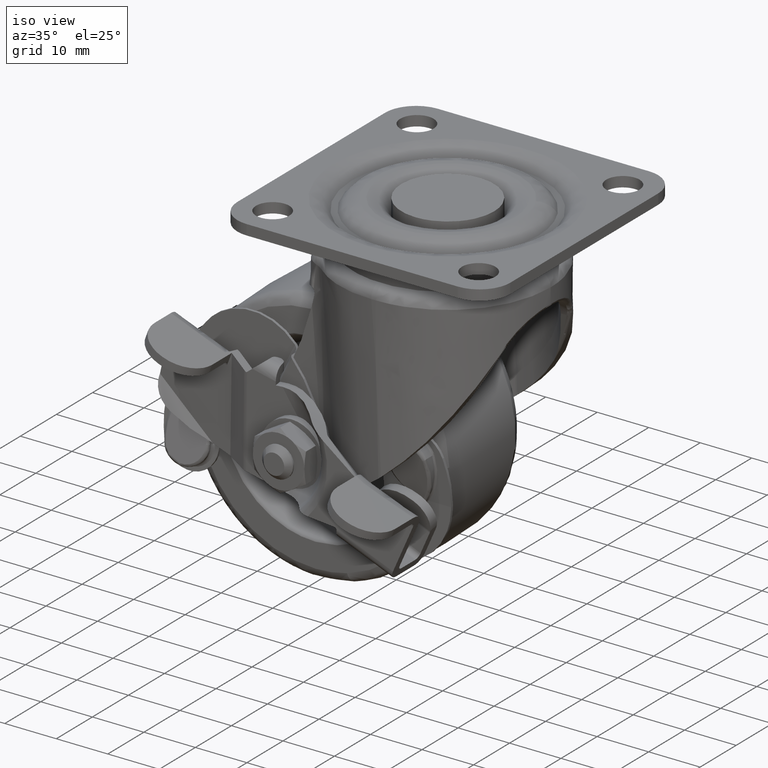
[diagram: clean part render]
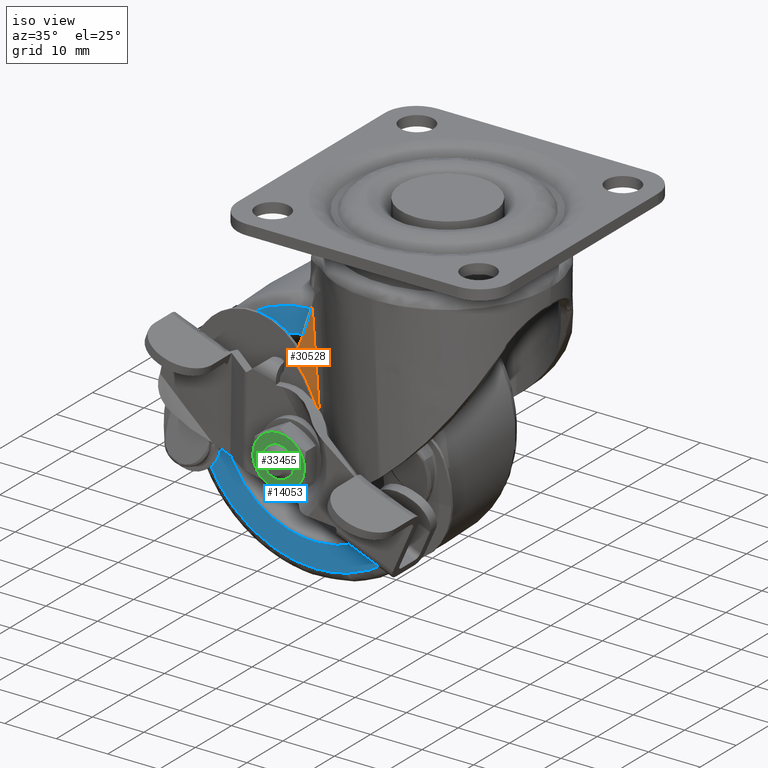
[diagram: same view with three faces highlighted in distinct colors, each labeled with its STEP entity id]
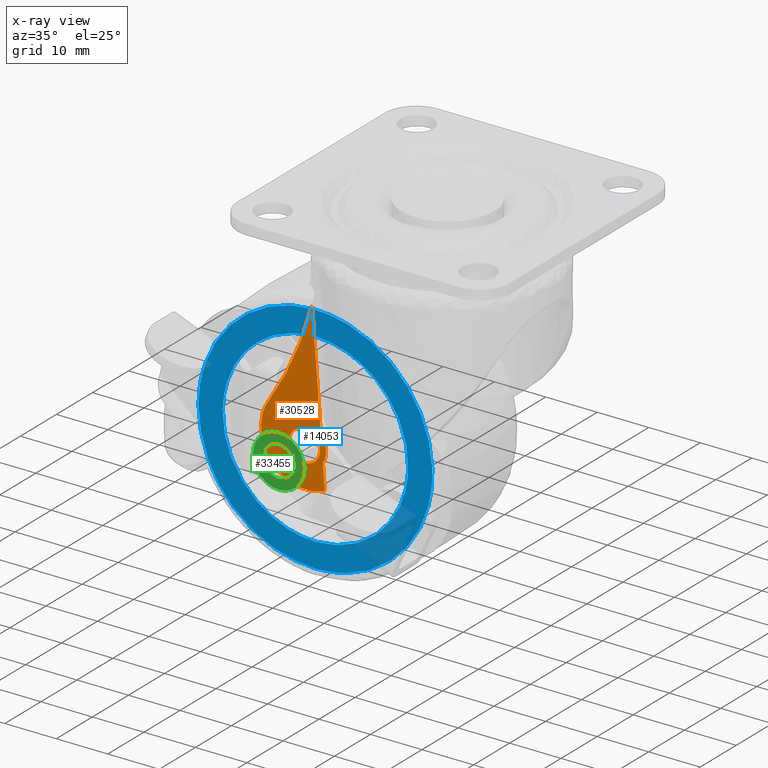
[diagram: x-ray of the same camera — body ghosted, the three highlighted faces saturated]
A machine part, iso view with three faces highlighted in distinct colors.
The next image is the same camera in x-ray (body ghosted, the three faces saturated) — at least one of them is partly hidden behind the body in this view.
Their STEP definitions:

[orange] entity #30528 — the highlighted face is a freeform B-spline surface patch.
#18819=CARTESIAN_POINT('',(-20.065063358441890,-14.0,-45.175825625251427));
#18820=VERTEX_POINT('',#18819);
#18826=CARTESIAN_POINT('',(-18.0,-14.0,-45.999702999999997));
#18827=VERTEX_POINT('',#18826);
#18828=CARTESIAN_POINT('',(-18.0,-14.0,-45.999702999999997));
#18829=CARTESIAN_POINT('',(-18.260985406424869,-14.0,-45.999760008467348));
#18830=CARTESIAN_POINT('',(-18.806665625784738,-14.000000000000011,-45.928103991971177));
#18831=CARTESIAN_POINT('',(-19.512046031592320,-14.000000000000011,-45.627105789375648));
#18832=CARTESIAN_POINT('',(-19.910186918212521,-14.000000000000041,-45.322818152207333));
#18833=CARTESIAN_POINT('',(-20.065063358441890,-14.0,-45.175825625251427));
#18834=B_SPLINE_CURVE_WITH_KNOTS('',3,(#18828,#18829,#18830,#18831,#18832,#18833),.UNSPECIFIED.,.F.,.U.,(4,1,1,4),(0.000000044315680,0.782971179636178,1.637101519672385,2.277707920481838),.UNSPECIFIED.);
#18835=EDGE_CURVE('',#18827,#18820,#18834,.T.);
#18837=CARTESIAN_POINT('',(-15.000000000000989,-14.0,-42.999705433661418));
#18838=VERTEX_POINT('',#18837);
#18839=CARTESIAN_POINT('',(-15.000000000000989,-14.0,-42.999705433661418));
#18840=CARTESIAN_POINT('',(-14.999707258841539,-14.000000000000011,-43.367916132603497));
#18841=CARTESIAN_POINT('',(-15.105268686113609,-14.0,-43.932147995106149));
#18842=CARTESIAN_POINT('',(-15.493405906489610,-14.000000000000041,-44.703196500300308));
#18843=CARTESIAN_POINT('',(-15.947090944183691,-13.999999999999931,-45.229244202061132));
#18844=CARTESIAN_POINT('',(-16.511773400309409,-14.000000000000110,-45.626762943634930));
#18845=CARTESIAN_POINT('',(-17.165611055049801,-13.999999999999920,-45.916683606614413));
#18846=CARTESIAN_POINT('',(-17.680913810506809,-14.000000000000030,-45.999862868301548));
#18847=CARTESIAN_POINT('',(-18.0,-14.0,-45.999702999999997));
#18848=B_SPLINE_CURVE_WITH_KNOTS('',3,(#18839,#18840,#18841,#18842,#18843,#18844,#18845,#18846,#18847),.UNSPECIFIED.,.F.,.U.,(4,1,1,1,1,1,4),(0.000000165653685,1.104492994524724,1.693561327583123,2.577110439045223,3.166198034698224,3.755288808023229,4.712505861323729),.UNSPECIFIED.);
#18849=EDGE_CURVE('',#18838,#18827,#18848,.T.);
#18851=CARTESIAN_POINT('',(-18.0,-14.0,-39.999702999999997));
#18852=VERTEX_POINT('',#18851);
#18853=CARTESIAN_POINT('',(-18.0,-14.0,-39.999702999999997));
#18854=CARTESIAN_POINT('',(-17.631795902367450,-13.999999999999989,-39.999419007742873));
#18855=CARTESIAN_POINT('',(-17.067532224706891,-14.0,-40.104931669771851));
#18856=CARTESIAN_POINT('',(-16.384657342724189,-13.999999999999989,-40.448833019660682));
#18857=CARTESIAN_POINT('',(-15.879121746088650,-14.000000000000041,-40.843281631138453));
#18858=CARTESIAN_POINT('',(-15.471260247816829,-13.999999999999879,-41.340293780729581));
#18859=CARTESIAN_POINT('',(-15.105306095659261,-14.000000000000149,-42.067253259063683));
#18860=CARTESIAN_POINT('',(-14.999642573871780,-13.999999999999890,-42.631489009396113));
#18861=CARTESIAN_POINT('',(-15.000000000000989,-14.0,-42.999705433661418));
#18862=B_SPLINE_CURVE_WITH_KNOTS('',3,(#18853,#18854,#18855,#18856,#18857,#18858,#18859,#18860,#18861),.UNSPECIFIED.,.F.,.U.,(4,1,1,1,1,1,4),(0.000000162309085,1.104493634964632,1.693562309699939,2.282641062937854,3.018944360145506,3.608015758171730,4.712508604695827),.UNSPECIFIED.);
#18863=EDGE_CURVE('',#18852,#18838,#18862,.T.);
#18865=CARTESIAN_POINT('',(-20.290667276063129,-14.0,-41.062476366331182));
#18866=VERTEX_POINT('',#18865);
#18867=CARTESIAN_POINT('',(-20.290667276063129,-14.0,-41.062476366331182));
#18868=CARTESIAN_POINT('',(-20.097905503368029,-13.999999999999989,-40.834336926220928));
#18869=CARTESIAN_POINT('',(-19.746734660525139,-14.000000000000020,-40.526988778261007));
#18870=CARTESIAN_POINT('',(-18.977080775815111,-14.0,-40.117638425019123));
#18871=CARTESIAN_POINT('',(-18.407358273430798,-14.0,-39.999184977064409));
#18872=CARTESIAN_POINT('',(-18.0,-14.0,-39.999702999999997));
#18873=B_SPLINE_CURVE_WITH_KNOTS('',3,(#18867,#18868,#18869,#18870,#18871,#18872),.UNSPECIFIED.,.F.,.U.,(4,1,1,4),(0.000000030252632,0.895980678798579,1.384694504412764,2.606484986007955),.UNSPECIFIED.);
#18874=EDGE_CURVE('',#18866,#18852,#18873,.T.);
#18909=CARTESIAN_POINT('',(-20.999999999999009,-14.0,-42.999700566338603));
#18910=VERTEX_POINT('',#18909);
#18911=CARTESIAN_POINT('',(-20.999999999999009,-14.0,-42.999700566338603));
#18912=CARTESIAN_POINT('',(-21.000545814175450,-13.999999999999989,-42.582788018386658));
#18913=CARTESIAN_POINT('',(-20.851173757673038,-14.0,-41.881327059396789));
#18914=CARTESIAN_POINT('',(-20.474889930057991,-14.000000000000011,-41.280177325258798));
#18915=CARTESIAN_POINT('',(-20.290667276063129,-14.0,-41.062476366331182));
#18916=B_SPLINE_CURVE_WITH_KNOTS('',3,(#18911,#18912,#18913,#18914,#18915),.UNSPECIFIED.,.F.,.U.,(4,1,4),(0.000000042969295,1.250437235727705,2.106024281585576),.UNSPECIFIED.);
#18917=EDGE_CURVE('',#18910,#18866,#18916,.T.);
#18919=CARTESIAN_POINT('',(-20.065063358441890,-14.0,-45.175825625251427));
#18920=CARTESIAN_POINT('',(-20.304384822977418,-14.0,-44.948995225297153));
#18921=CARTESIAN_POINT('',(-20.629392087535901,-14.000000000000011,-44.517975917237742));
#18922=CARTESIAN_POINT('',(-20.932274408835109,-13.999999999999980,-43.760505582113773));
#18923=CARTESIAN_POINT('',(-21.000102756311289,-13.999999999999980,-43.278691683453253));
#18924=CARTESIAN_POINT('',(-20.999999999999009,-14.0,-42.999700566338603));
#18925=B_SPLINE_CURVE_WITH_KNOTS('',3,(#18919,#18920,#18921,#18922,#18923,#18924),.UNSPECIFIED.,.F.,.U.,(4,1,1,4),(0.000000038491807,0.989148881986098,1.597829272250050,2.434801662014795),.UNSPECIFIED.);
#18926=EDGE_CURVE('',#18820,#18910,#18925,.T.);
#21787=CARTESIAN_POINT('',(-14.812401172224860,-14.0,-40.342314486220552));
#21788=VERTEX_POINT('',#21787);
#21789=CARTESIAN_POINT('',(-14.440761517049680,-14.0,-45.133788617187399));
#21790=VERTEX_POINT('',#21789);
#21791=CARTESIAN_POINT('',(-14.812401172224860,-14.0,-40.342314486220552));
#21792=CARTESIAN_POINT('',(-14.487232016746310,-14.000000000000020,-40.731680700322499));
#21793=CARTESIAN_POINT('',(-14.075950155706559,-13.999999999999959,-41.465739604869697));
#21794=CARTESIAN_POINT('',(-13.832281998803831,-14.000000000000011,-42.595428209971871));
#21795=CARTESIAN_POINT('',(-13.848746950853410,-13.999999999999959,-43.455234819143470));
#21796=CARTESIAN_POINT('',(-14.034723846792209,-14.000000000000041,-44.319014908056403));
#21797=CARTESIAN_POINT('',(-14.262219556897969,-13.999999999999989,-44.836194019939803));
#21798=CARTESIAN_POINT('',(-14.440761517049680,-14.0,-45.133788617187399));
#21799=B_SPLINE_CURVE_WITH_KNOTS('',3,(#21791,#21792,#21793,#21794,#21795,#21796,#21797,#21798),.UNSPECIFIED.,.F.,.U.,(4,1,1,1,1,4),(0.000000111782645,1.521655138244294,2.482710668389745,3.443724059880220,4.084428039350171,5.125545881543708),.UNSPECIFIED.);
#21800=EDGE_CURVE('',#21788,#21790,#21799,.T.);
#29269=CARTESIAN_POINT('',(-16.549373770837999,-14.0,-17.947881716309951));
#29270=VERTEX_POINT('',#29269);
#29271=CARTESIAN_POINT('',(-14.812401172224860,-14.0,-40.342314486220552));
#29272=CARTESIAN_POINT('',(-16.549373770837999,-14.0,-17.947881716309951));
#29273=QUASI_UNIFORM_CURVE('',1,(#29271,#29272),.UNSPECIFIED.,.F.,.U.);
#29274=EDGE_CURVE('',#21788,#29270,#29273,.T.);
#29277=CARTESIAN_POINT('',(-14.069150555114280,-14.0,-49.924892812077303));
#29278=VERTEX_POINT('',#29277);
#29279=CARTESIAN_POINT('',(-14.069150555114280,-14.0,-49.924892812077303));
#29280=CARTESIAN_POINT('',(-14.440761517049680,-14.0,-45.133788617187399));
#29281=QUASI_UNIFORM_CURVE('',1,(#29279,#29280),.UNSPECIFIED.,.F.,.U.);
#29282=EDGE_CURVE('',#29278,#21790,#29281,.T.);
#30107=CARTESIAN_POINT('',(-14.579077689634200,-14.0,-50.119038075290099));
#30108=VERTEX_POINT('',#30107);
#30109=CARTESIAN_POINT('',(-14.069150555114280,-14.0,-49.924892812077303));
#30110=CARTESIAN_POINT('',(-14.323635220084700,-14.000000000000011,-50.023223291895810));
#30111=CARTESIAN_POINT('',(-14.579077689634200,-14.0,-50.119038075290099));
#30112=B_SPLINE_CURVE_WITH_KNOTS('',2,(#30109,#30110,#30111),.UNSPECIFIED.,.F.,.U.,(3,3),(6.106227E-016,0.545638789672889),.UNSPECIFIED.);
#30113=EDGE_CURVE('',#29278,#30108,#30112,.T.);
#30478=CARTESIAN_POINT('',(-27.099975711828669,-14.0,-52.311965807248292));
#30479=CARTESIAN_POINT('',(-27.099975711828669,-14.0,-16.313054478204229));
#30480=CARTESIAN_POINT('',(-13.219734244910461,-14.0,-52.311965807248292));
#30481=CARTESIAN_POINT('',(-13.219734244910461,-14.0,-16.313054478204229));
#30482=B_SPLINE_SURFACE_WITH_KNOTS('',1,1,((#30478,#30480),(#30479,#30481)),.UNSPECIFIED.,.F.,.F.,.U.,(2,2),(2,2),(0.0,35.998911329044063),(0.0,13.880241466918211),.UNSPECIFIED.);
#30483=ORIENTED_EDGE('',*,*,#29282,.T.);
#30484=ORIENTED_EDGE('',*,*,#21800,.F.);
#30485=ORIENTED_EDGE('',*,*,#29274,.T.);
#30486=CARTESIAN_POINT('',(-25.008377406252698,-14.0,-37.023370460246653));
#30487=VERTEX_POINT('',#30486);
#30488=CARTESIAN_POINT('',(-16.549373770837999,-14.0,-17.947881716309951));
#30489=CARTESIAN_POINT('',(-17.063046938685890,-13.999999999999989,-19.957889616089240));
#30490=CARTESIAN_POINT('',(-18.451550120568239,-14.000000000000030,-24.449110947828750));
#30491=CARTESIAN_POINT('',(-21.256475439105468,-13.999999999999931,-30.864622713643751));
#30492=CARTESIAN_POINT('',(-23.742976684027820,-14.000000000000069,-35.111158444847099));
#30493=CARTESIAN_POINT('',(-25.008377406252698,-14.0,-37.023370460246653));
#30494=B_SPLINE_CURVE_WITH_KNOTS('',3,(#30488,#30489,#30490,#30491,#30492,#30493),.UNSPECIFIED.,.F.,.U.,(4,1,1,4),(2.148294E-009,6.223830488887860,14.085507320819289,20.964480602779460),.UNSPECIFIED.);
#30495=EDGE_CURVE('',#29270,#30487,#30494,.T.);
#30496=ORIENTED_EDGE('',*,*,#30495,.T.);
#30497=CARTESIAN_POINT('',(-14.579077689634200,-14.0,-50.119038075290099));
#30498=CARTESIAN_POINT('',(-15.118526329044000,-13.999999999999980,-50.321459050085473));
#30499=CARTESIAN_POINT('',(-16.125471427570741,-14.000000000000050,-50.589900167853983));
#30500=CARTESIAN_POINT('',(-17.536483968931059,-13.999999999999980,-50.708490096888589));
#30501=CARTESIAN_POINT('',(-18.833306434583310,-14.000000000000030,-50.632481579309477));
#30502=CARTESIAN_POINT('',(-20.135862759391170,-13.999999999999950,-50.367132296238239));
#30503=CARTESIAN_POINT('',(-21.757542001920338,-13.999999999999989,-49.751446886000728));
#30504=CARTESIAN_POINT('',(-23.362910340487929,-14.000000000000179,-48.701718725055620));
#30505=CARTESIAN_POINT('',(-24.588883670196662,-13.999999999999620,-47.388421340373952));
#30506=CARTESIAN_POINT('',(-25.426334366031821,-14.000000000000229,-46.107982043892292));
#30507=CARTESIAN_POINT('',(-25.989321883803779,-13.999999999999980,-44.870740384099172));
#30508=CARTESIAN_POINT('',(-26.331080332422751,-14.000000000000041,-43.586119168030379));
#30509=CARTESIAN_POINT('',(-26.486288716460290,-14.000000000000030,-42.325847292030467));
#30510=CARTESIAN_POINT('',(-26.464009971764010,-13.999999999999851,-40.823285321563773));
#30511=CARTESIAN_POINT('',(-26.062289620105620,-14.000000000000361,-38.951276795180988));
#30512=CARTESIAN_POINT('',(-25.421872910292311,-13.999999999999750,-37.647920289759362));
#30513=CARTESIAN_POINT('',(-25.008377406252698,-14.0,-37.023370460246653));
#30514=B_SPLINE_CURVE_WITH_KNOTS('',3,(#30497,#30498,#30499,#30500,#30501,#30502,#30503,#30504,#30505,#30506,#30507,#30508,#30509,#30510,#30511,#30512,#30513),.UNSPECIFIED.,.F.,.U.,(4,1,1,1,1,1,1,1,1,1,1,1,1,1,4),(0.000000298710731,1.728525168410720,3.111322143718606,4.234902486184076,5.617741715985975,7.087020518240927,9.420529629821361,11.321879719454520,12.445436894570941,14.001118855411610,15.383941077313160,16.421078579439289,17.803911092257088,19.878204055633621,22.125244062638970),.UNSPECIFIED.);
#30515=EDGE_CURVE('',#30108,#30487,#30514,.T.);
#30516=ORIENTED_EDGE('',*,*,#30515,.F.);
#30517=ORIENTED_EDGE('',*,*,#30113,.F.);
#30518=EDGE_LOOP('',(#30483,#30484,#30485,#30496,#30516,#30517));
#30519=FACE_OUTER_BOUND('',#30518,.T.);
#30520=ORIENTED_EDGE('',*,*,#18863,.T.);
#30521=ORIENTED_EDGE('',*,*,#18849,.T.);
#30522=ORIENTED_EDGE('',*,*,#18835,.T.);
#30523=ORIENTED_EDGE('',*,*,#18926,.T.);
#30524=ORIENTED_EDGE('',*,*,#18917,.T.);
#30525=ORIENTED_EDGE('',*,*,#18874,.T.);
#30526=EDGE_LOOP('',(#30520,#30521,#30522,#30523,#30524,#30525));
#30527=FACE_BOUND('',#30526,.T.);
#30528=ADVANCED_FACE('',(#30519,#30527),#30482,.F.);

[blue] entity #14053 — the highlighted face is a freeform B-spline surface patch.
#12818=CARTESIAN_POINT('',(17.995604980112279,-11.0,-43.452374135858904));
#12819=VERTEX_POINT('',#12818);
#12830=CARTESIAN_POINT('',(0.0,-11.0,-24.998709999999999));
#12831=VERTEX_POINT('',#12830);
#12832=CARTESIAN_POINT('',(17.995604980112279,-11.0,-43.452374135858904));
#12833=CARTESIAN_POINT('',(18.027768742420939,-11.0,-42.180919178324743));
#12834=CARTESIAN_POINT('',(17.872488407624900,-11.0,-40.268755433285023));
#12835=CARTESIAN_POINT('',(17.098533479717581,-11.000000000000080,-37.102926826743477));
#12836=CARTESIAN_POINT('',(15.897111176247810,-10.999999999999860,-34.300523624872874));
#12837=CARTESIAN_POINT('',(14.061492839259190,-11.000000000000050,-31.643623185430300));
#12838=CARTESIAN_POINT('',(11.994222398024920,-10.999999999999710,-29.470097063857509));
#12839=CARTESIAN_POINT('',(9.867993884788694,-11.000000000000121,-27.859296025903461));
#12840=CARTESIAN_POINT('',(7.296757638171634,-10.999999999999959,-26.469249065385220));
#12841=CARTESIAN_POINT('',(4.152029587177571,-11.000000000000030,-25.335421991770300));
#12842=CARTESIAN_POINT('',(1.533728327732628,-10.999999999999989,-24.998307031756411));
#12843=CARTESIAN_POINT('',(0.0,-11.0,-24.998709999999999));
#12844=B_SPLINE_CURVE_WITH_KNOTS('',3,(#12832,#12833,#12834,#12835,#12836,#12837,#12838,#12839,#12840,#12841,#12842,#12843),.UNSPECIFIED.,.F.,.U.,(4,1,1,1,1,1,1,1,1,4),(0.000000094310835,3.815527688100662,5.723310296397255,9.763333348632983,12.905556107756540,15.374403333148550,18.741057795675001,20.873284642510878,24.127743452149570,28.728828489054539),.UNSPECIFIED.);
#12845=EDGE_CURVE('',#12819,#12831,#12844,.T.);
#12847=CARTESIAN_POINT('',(-17.995604980112279,-11.0,-42.547625864141096));
#12848=VERTEX_POINT('',#12847);
#12849=CARTESIAN_POINT('',(0.0,-11.0,-24.998709999999999));
#12850=CARTESIAN_POINT('',(-1.123107343728384,-11.000000000000050,-24.998591332541771));
#12851=CARTESIAN_POINT('',(-3.296802906752132,-10.999999999999909,-25.202803792584490));
#12852=CARTESIAN_POINT('',(-6.307213308088049,-11.000000000000041,-26.051197549619200));
#12853=CARTESIAN_POINT('',(-8.673659636133696,-10.999999999999980,-27.167571603323530));
#12854=CARTESIAN_POINT('',(-10.780251033061910,-11.000000000000080,-28.519516259641541));
#12855=CARTESIAN_POINT('',(-12.530770477300370,-10.999999999999821,-29.995067032691590));
#12856=CARTESIAN_POINT('',(-14.155224091190339,-11.000000000000201,-31.804669810907129));
#12857=CARTESIAN_POINT('',(-15.523408501715590,-10.999999999999860,-33.771546574624132));
#12858=CARTESIAN_POINT('',(-16.870003296407411,-11.000000000000130,-36.429171998345971));
#12859=CARTESIAN_POINT('',(-17.750408798469959,-11.000000000000121,-39.437076984806232));
#12860=CARTESIAN_POINT('',(-17.972854458986209,-10.999999999999581,-41.642200797011498));
#12861=CARTESIAN_POINT('',(-17.995604980112279,-11.0,-42.547625864141096));
#12862=B_SPLINE_CURVE_WITH_KNOTS('',3,(#12849,#12850,#12851,#12852,#12853,#12854,#12855,#12856,#12857,#12858,#12859,#12860,#12861),.UNSPECIFIED.,.F.,.U.,(4,1,1,1,1,1,1,1,1,1,4),(0.000000085900371,3.369300446892694,6.521243921363823,9.347134238222452,11.194836205720760,14.020623086602241,16.194406688623701,18.476854094207081,21.194048502275390,25.106821511819021,27.823980698394919),.UNSPECIFIED.);
#12863=EDGE_CURVE('',#12831,#12848,#12862,.T.);
#12904=CARTESIAN_POINT('',(0.0,-11.0,-61.001289999999997));
#12905=VERTEX_POINT('',#12904);
#12906=CARTESIAN_POINT('',(-17.995604980112279,-11.0,-42.547625864141096));
#12907=CARTESIAN_POINT('',(-18.023909008025701,-11.000000000000011,-43.669486220272013));
#12908=CARTESIAN_POINT('',(-17.859516003224432,-10.999999999999970,-46.068427885350822));
#12909=CARTESIAN_POINT('',(-16.993429612485858,-11.000000000000080,-49.224470799189838));
#12910=CARTESIAN_POINT('',(-15.797167821340929,-10.999999999999821,-51.728727176551047));
#12911=CARTESIAN_POINT('',(-14.482807858368060,-11.000000000000220,-53.778366263483647));
#12912=CARTESIAN_POINT('',(-12.764385807297799,-10.999999999999581,-55.813986047623096));
#12913=CARTESIAN_POINT('',(-10.210558675340749,-11.000000000000210,-57.971052875462810));
#12914=CARTESIAN_POINT('',(-7.175445806954153,-10.999999999999931,-59.636435919861043));
#12915=CARTESIAN_POINT('',(-3.665827054146817,-10.999999999999780,-60.743005074350293));
#12916=CARTESIAN_POINT('',(-1.309266614011002,-11.000000000000110,-61.001521297163720));
#12917=CARTESIAN_POINT('',(0.0,-11.0,-61.001289999999997));
#12918=B_SPLINE_CURVE_WITH_KNOTS('',3,(#12906,#12907,#12908,#12909,#12910,#12911,#12912,#12913,#12914,#12915,#12916,#12917),.UNSPECIFIED.,.F.,.U.,(4,1,1,1,1,1,1,1,1,4),(0.000000094313425,3.366651046560708,7.182207780922042,9.763333348637332,11.671108994567559,14.476579931471770,17.731044456998941,21.658843579795288,24.801062808781619,28.728828489054550),.UNSPECIFIED.);
#12919=EDGE_CURVE('',#12848,#12905,#12918,.T.);
#12921=CARTESIAN_POINT('',(0.0,-11.0,-61.001289999999997));
#12922=CARTESIAN_POINT('',(1.123109907367633,-11.000000000000020,-61.001428914183620));
#12923=CARTESIAN_POINT('',(2.898273022723691,-10.999999999999959,-60.834572139412948));
#12924=CARTESIAN_POINT('',(5.646220853812303,-11.0,-60.157762512761408));
#12925=CARTESIAN_POINT('',(7.771047632639801,-11.000000000000011,-59.300688974211148));
#12926=CARTESIAN_POINT('',(10.006905759606850,-10.999999999999851,-58.022736660505423));
#12927=CARTESIAN_POINT('',(11.689866812405951,-11.000000000000140,-56.753807666204636));
#12928=CARTESIAN_POINT('',(13.429726674566981,-10.999999999999950,-55.057144433919532));
#12929=CARTESIAN_POINT('',(14.881297144477729,-11.000000000000030,-53.240629541102678));
#12930=CARTESIAN_POINT('',(16.385062413144770,-10.999999999999950,-50.670197584522143));
#12931=CARTESIAN_POINT('',(17.594843057620331,-11.000000000000121,-47.428657645401167));
#12932=CARTESIAN_POINT('',(17.961283625218389,-10.999999999999860,-44.828675665209879));
#12933=CARTESIAN_POINT('',(17.995604980112279,-11.0,-43.452374135858904));
#12934=B_SPLINE_CURVE_WITH_KNOTS('',3,(#12921,#12922,#12923,#12924,#12925,#12926,#12927,#12928,#12929,#12930,#12931,#12932,#12933),.UNSPECIFIED.,.F.,.U.,(4,1,1,1,1,1,1,1,1,1,4),(0.000000085905146,3.369300446898855,5.325670700730115,8.477632224749211,10.216625374620531,13.042532274686440,14.781450403747510,17.498647376395692,19.998479323848670,23.693861852701769,27.823980698394909),.UNSPECIFIED.);
#12935=EDGE_CURVE('',#12905,#12819,#12934,.T.);
#12958=CARTESIAN_POINT('',(6.149171379200593,-11.0,-64.878373292055841));
#12959=VERTEX_POINT('',#12958);
#12960=CARTESIAN_POINT('',(22.709950391144609,-11.0,-42.143449218221292));
#12961=VERTEX_POINT('',#12960);
#12962=CARTESIAN_POINT('',(6.149171379200593,-11.0,-64.878373292055841));
#12963=CARTESIAN_POINT('',(7.289683102342351,-11.0,-64.557871452451451));
#12964=CARTESIAN_POINT('',(8.442221600842631,-11.0,-64.134293246855762));
#12965=CARTESIAN_POINT('',(9.589289043356713,-11.0,-63.604109507263153));
#12966=CARTESIAN_POINT('',(9.696303584109460,-11.0,-63.553298841266837));
#12967=CARTESIAN_POINT('',(9.839329516952814,-11.0,-63.486256330819842));
#12968=CARTESIAN_POINT('',(9.945782931077432,-10.999999999999980,-63.434273208507740));
#12969=CARTESIAN_POINT('',(11.753833974594899,-11.000000000000041,-62.546988418559430));
#12970=CARTESIAN_POINT('',(13.447493689381480,-11.000000000000011,-61.427156016311379));
#12971=CARTESIAN_POINT('',(14.995131688578210,-11.0,-60.077390110936591));
#12972=CARTESIAN_POINT('',(15.112952423504630,-11.0,-59.972185302769908));
#12973=CARTESIAN_POINT('',(15.201614162779480,-11.0,-59.893617586439042));
#12974=CARTESIAN_POINT('',(16.168058730948420,-11.0,-59.019424577164592));
#12975=CARTESIAN_POINT('',(18.008442535852279,-10.999999999999989,-57.051926605271888));
#12976=CARTESIAN_POINT('',(20.022057841248959,-11.000000000000011,-53.961324928311797));
#12977=CARTESIAN_POINT('',(21.300956096277819,-11.000000000000030,-51.064625118543937));
#12978=CARTESIAN_POINT('',(22.145255314898090,-11.000000000000330,-48.346320900087122));
#12979=CARTESIAN_POINT('',(22.673398077144739,-10.999999999998741,-45.464298307913587));
#12980=CARTESIAN_POINT('',(22.751680941258989,-11.000000000001650,-43.248360317213127));
#12981=CARTESIAN_POINT('',(22.709950391144609,-11.0,-42.143449218221292));
#12982=B_SPLINE_CURVE_WITH_KNOTS('',3,(#12962,#12963,#12964,#12965,#12966,#12967,#12968,#12969,#12970,#12971,#12972,#12973,#12974,#12975,#12976,#12977,#12978,#12979,#12980,#12981),.UNSPECIFIED.,.F.,.U.,(4,1,1,1,1,2,1,1,1,1,1,1,1,1,1,1,4),(0.000145101630828,3.554206202649485,3.672659379207712,3.791128757437850,3.909598135667974,4.146536892292215,9.951537904691744,10.188476794273720,10.306946232969580,10.425415671665460,10.543868974638940,14.216420876574920,18.481251287980591,21.561452687718749,23.693902219564020,27.011042441291139,30.328142621028039),.UNSPECIFIED.);
#12983=EDGE_CURVE('',#12959,#12961,#12982,.T.);
#13064=CARTESIAN_POINT('',(0.0,-11.0,-65.726097897426300));
#13065=VERTEX_POINT('',#13064);
#13066=CARTESIAN_POINT('',(0.0,-11.0,-65.726097897426300));
#13067=CARTESIAN_POINT('',(2.075661967188513,-11.000000000000011,-65.726655974740979));
#13068=CARTESIAN_POINT('',(4.151049598198997,-11.0,-65.440283456279332));
#13069=CARTESIAN_POINT('',(6.149171379200593,-11.0,-64.878373292055841));
#13070=B_SPLINE_CURVE_WITH_KNOTS('',3,(#13066,#13067,#13068,#13069),.UNSPECIFIED.,.F.,.U.,(4,4),(2.098604E-009,6.226808166987434),.UNSPECIFIED.);
#13071=EDGE_CURVE('',#13065,#12959,#13070,.T.);
#13073=CARTESIAN_POINT('',(-22.726097897426229,-11.0,-43.000001790587973));
#13074=VERTEX_POINT('',#13073);
#13075=CARTESIAN_POINT('',(-22.726097897426229,-11.0,-43.000001790587973));
#13076=CARTESIAN_POINT('',(-22.726550604713250,-11.000000000000060,-44.812848189894190));
#13077=CARTESIAN_POINT('',(-22.401706583728231,-10.999999999999931,-47.508545174228360));
#13078=CARTESIAN_POINT('',(-21.227555804118779,-11.000000000000099,-51.336820734391857));
#13079=CARTESIAN_POINT('',(-19.931016429956070,-10.999999999999741,-54.078151730694458));
#13080=CARTESIAN_POINT('',(-18.265248840593131,-11.000000000000250,-56.604318308211248));
#13081=CARTESIAN_POINT('',(-16.144844512921530,-10.999999999999771,-59.140567613735278));
#13082=CARTESIAN_POINT('',(-13.490692722221629,-11.000000000000041,-61.429893938040188));
#13083=CARTESIAN_POINT('',(-10.054094890124601,-11.000000000000060,-63.489642939582119));
#13084=CARTESIAN_POINT('',(-6.586762890827999,-11.000000000000229,-64.876373262762641));
#13085=CARTESIAN_POINT('',(-3.067796150825419,-10.999999999999520,-65.598665822159177));
#13086=CARTESIAN_POINT('',(-0.883139306000795,-11.000000000000490,-65.726105521712896));
#13087=CARTESIAN_POINT('',(0.0,-11.0,-65.726097897426300));
#13088=B_SPLINE_CURVE_WITH_KNOTS('',3,(#13075,#13076,#13077,#13078,#13079,#13080,#13081,#13082,#13083,#13084,#13085,#13086,#13087),.UNSPECIFIED.,.F.,.U.,(4,1,1,1,1,1,1,1,1,1,4),(0.000000087838707,5.438376085683089,8.087852064350290,11.992351597964751,14.502401227533980,17.151843879986028,21.892959456338890,24.960787419659582,29.144175181048119,33.048697441056703,35.698126090366749),.UNSPECIFIED.);
#13089=EDGE_CURVE('',#13074,#13065,#13088,.T.);
#13091=CARTESIAN_POINT('',(0.0,-11.0,-20.273902102573700));
#13092=VERTEX_POINT('',#13091);
#13093=CARTESIAN_POINT('',(0.0,-11.0,-20.273902102573700));
#13094=CARTESIAN_POINT('',(-1.719850818225550,-11.000000000000041,-20.273581700162520));
#13095=CARTESIAN_POINT('',(-4.694548749949356,-10.999999999999909,-20.613232249043740));
#13096=CARTESIAN_POINT('',(-8.514659743149483,-11.000000000000130,-21.836483856245170));
#13097=CARTESIAN_POINT('',(-11.728772753855610,-10.999999999999730,-23.429649362065359));
#13098=CARTESIAN_POINT('',(-14.513211603941910,-11.000000000000441,-25.390664149093070));
#13099=CARTESIAN_POINT('',(-16.921652405322330,-10.999999999999540,-27.726416029132778));
#13100=CARTESIAN_POINT('',(-18.647760712744230,-11.000000000000190,-29.924324392944119));
#13101=CARTESIAN_POINT('',(-20.063736675484069,-10.999999999999950,-32.222321272884962));
#13102=CARTESIAN_POINT('',(-21.191525176051918,-11.000000000000080,-34.625852040826288));
#13103=CARTESIAN_POINT('',(-22.367229493635961,-10.999999999999860,-38.259089068360382));
#13104=CARTESIAN_POINT('',(-22.726678499894600,-11.000000000000229,-41.094181933924773));
#13105=CARTESIAN_POINT('',(-22.726097897426229,-11.0,-43.000001790587973));
#13106=B_SPLINE_CURVE_WITH_KNOTS('',3,(#13093,#13094,#13095,#13096,#13097,#13098,#13099,#13100,#13101,#13102,#13103,#13104,#13105),.UNSPECIFIED.,.F.,.U.,(4,1,1,1,1,1,1,1,1,1,4),(0.000000087623739,5.159489918321494,8.924532184451209,11.992352276069919,15.896868659533220,19.104026538067998,22.032438081689911,24.263554416700568,27.191935481476850,29.980871896466009,35.698128108779741),.UNSPECIFIED.);
#13107=EDGE_CURVE('',#13092,#13074,#13106,.T.);
#13109=CARTESIAN_POINT('',(22.709950391144609,-11.0,-42.143449218221292));
#13110=CARTESIAN_POINT('',(22.646964218549090,-11.0,-40.466062861699541));
#13111=CARTESIAN_POINT('',(22.234598116919589,-10.999999999999959,-37.712436741018053));
#13112=CARTESIAN_POINT('',(21.080992804171270,-11.000000000000060,-34.357498510555182));
#13113=CARTESIAN_POINT('',(19.686766519924149,-10.999999999999870,-31.499667212615819));
#13114=CARTESIAN_POINT('',(18.010546204379349,-11.000000000000250,-29.005037744585881));
#13115=CARTESIAN_POINT('',(15.960892444312011,-10.999999999999760,-26.753144515018771));
#13116=CARTESIAN_POINT('',(13.703954709084829,-11.000000000000190,-24.778978639267379));
#13117=CARTESIAN_POINT('',(11.039914981192760,-10.999999999999901,-23.030101331077152));
#13118=CARTESIAN_POINT('',(8.346676922509463,-11.000000000000020,-21.810670601474879));
#13119=CARTESIAN_POINT('',(5.799326316363398,-10.999999999999771,-20.982288064620111));
#13120=CARTESIAN_POINT('',(3.175612157954759,-11.000000000000160,-20.424151995927708));
#13121=CARTESIAN_POINT('',(1.088782435409947,-11.000000000000080,-20.273854316817790));
#13122=CARTESIAN_POINT('',(0.0,-11.0,-20.273902102573700));
#13123=B_SPLINE_CURVE_WITH_KNOTS('',3,(#13109,#13110,#13111,#13112,#13113,#13114,#13115,#13116,#13117,#13118,#13119,#13120,#13121,#13122),.UNSPECIFIED.,.F.,.U.,(4,1,1,1,1,1,1,1,1,1,1,4),(0.000000078311380,5.035642775244892,8.302044215211303,10.615734051711440,14.562639678916540,17.284640120829039,19.734367400958678,23.545137082444729,26.811523975939110,28.580827024711780,31.575025234296611,34.841369460608583),.UNSPECIFIED.);
#13124=EDGE_CURVE('',#12961,#13092,#13123,.T.);
#14035=CARTESIAN_POINT('',(-24.996408452556810,-11.0,-67.996433973551461));
#14036=CARTESIAN_POINT('',(-24.996408452556810,-11.0,-18.003567245571439));
#14037=CARTESIAN_POINT('',(24.995896298214380,-11.0,-67.996433973551461));
#14038=CARTESIAN_POINT('',(24.995896298214380,-11.0,-18.003567245571439));
#14039=B_SPLINE_SURFACE_WITH_KNOTS('',1,1,((#14035,#14037),(#14036,#14038)),.UNSPECIFIED.,.F.,.F.,.U.,(2,2),(2,2),(0.0,49.992866727980029),(0.0,49.992304750771197),.UNSPECIFIED.);
#14040=ORIENTED_EDGE('',*,*,#13071,.T.);
#14041=ORIENTED_EDGE('',*,*,#12983,.T.);
#14042=ORIENTED_EDGE('',*,*,#13124,.T.);
#14043=ORIENTED_EDGE('',*,*,#13107,.T.);
#14044=ORIENTED_EDGE('',*,*,#13089,.T.);
#14045=EDGE_LOOP('',(#14040,#14041,#14042,#14043,#14044));
#14046=FACE_OUTER_BOUND('',#14045,.T.);
#14047=ORIENTED_EDGE('',*,*,#12863,.F.);
#14048=ORIENTED_EDGE('',*,*,#12845,.F.);
#14049=ORIENTED_EDGE('',*,*,#12935,.F.);
#14050=ORIENTED_EDGE('',*,*,#12919,.F.);
#14051=EDGE_LOOP('',(#14047,#14048,#14049,#14050));
#14052=FACE_BOUND('',#14051,.T.);
#14053=ADVANCED_FACE('',(#14046,#14052),#14039,.F.);

[green] entity #33455 — the highlighted face is a freeform B-spline surface patch.
#32226=CARTESIAN_POINT('',(-16.062774134717181,-21.199999000195469,-40.709036645627108));
#32227=VERTEX_POINT('',#32226);
#32228=CARTESIAN_POINT('',(-15.000000000000989,-21.199998999999949,-42.999705433661418));
#32229=VERTEX_POINT('',#32228);
#32230=CARTESIAN_POINT('',(-16.062774134717181,-21.199999000195469,-40.709036645627108));
#32231=CARTESIAN_POINT('',(-15.834648783585530,-21.199999000179002,-40.901802372875281));
#32232=CARTESIAN_POINT('',(-15.491070759605060,-21.199999000145549,-41.294265053479769));
#32233=CARTESIAN_POINT('',(-15.101858564040480,-21.199999000078691,-42.076780875481887));
#32234=CARTESIAN_POINT('',(-14.999713991720130,-21.199999000030122,-42.646705407908172));
#32235=CARTESIAN_POINT('',(-15.000000000000989,-21.199998999999949,-42.999705433661418));
#32236=B_SPLINE_CURVE_WITH_KNOTS('',3,(#32230,#32231,#32232,#32233,#32234,#32235),.UNSPECIFIED.,.F.,.U.,(4,1,1,4),(0.000000030330753,0.895981333352167,1.547600722441274,2.606486890152451),.UNSPECIFIED.);
#32237=EDGE_CURVE('',#32227,#32229,#32236,.T.);
#32281=CARTESIAN_POINT('',(-20.065063358441890,-21.199998999999949,-45.175825625251427));
#32282=VERTEX_POINT('',#32281);
#32288=CARTESIAN_POINT('',(-18.0,-21.199998999999949,-45.999702999999997));
#32289=VERTEX_POINT('',#32288);
#32290=CARTESIAN_POINT('',(-18.0,-21.199998999999949,-45.999702999999997));
#32291=CARTESIAN_POINT('',(-18.260985406424869,-21.199998999999931,-45.999760008467348));
#32292=CARTESIAN_POINT('',(-18.806665625784738,-21.199998999999949,-45.928103991971177));
#32293=CARTESIAN_POINT('',(-19.512046031592320,-21.199998999999970,-45.627105789375648));
#32294=CARTESIAN_POINT('',(-19.910186918212521,-21.199998999999998,-45.322818152207333));
#32295=CARTESIAN_POINT('',(-20.065063358441890,-21.199998999999949,-45.175825625251427));
#32296=B_SPLINE_CURVE_WITH_KNOTS('',3,(#32290,#32291,#32292,#32293,#32294,#32295),.UNSPECIFIED.,.F.,.U.,(4,1,1,4),(0.000000044315680,0.782971179636178,1.637101519672385,2.277707920481838),.UNSPECIFIED.);
#32297=EDGE_CURVE('',#32289,#32282,#32296,.T.);
#32299=CARTESIAN_POINT('',(-15.000000000000989,-21.199998999999949,-42.999705433661418));
#32300=CARTESIAN_POINT('',(-14.999707258841539,-21.199998999999959,-43.367916132603497));
#32301=CARTESIAN_POINT('',(-15.105268686113609,-21.199998999999920,-43.932147995106149));
#32302=CARTESIAN_POINT('',(-15.493405906489610,-21.199999000000009,-44.703196500300308));
#32303=CARTESIAN_POINT('',(-15.947090944183691,-21.199998999999831,-45.229244202061132));
#32304=CARTESIAN_POINT('',(-16.511773400309409,-21.199999000000101,-45.626762943634930));
#32305=CARTESIAN_POINT('',(-17.165611055049801,-21.199998999999838,-45.916683606614413));
#32306=CARTESIAN_POINT('',(-17.680913810506809,-21.199998999999970,-45.999862868301548));
#32307=CARTESIAN_POINT('',(-18.0,-21.199998999999949,-45.999702999999997));
#32308=B_SPLINE_CURVE_WITH_KNOTS('',3,(#32299,#32300,#32301,#32302,#32303,#32304,#32305,#32306,#32307),.UNSPECIFIED.,.F.,.U.,(4,1,1,1,1,1,4),(0.000000165653685,1.104492994524724,1.693561327583123,2.577110439045223,3.166198034698224,3.755288808023229,4.712505861323729),.UNSPECIFIED.);
#32309=EDGE_CURVE('',#32229,#32289,#32308,.T.);
#32332=CARTESIAN_POINT('',(-18.0,-21.199998999999949,-39.999702999999997));
#32333=VERTEX_POINT('',#32332);
#32334=CARTESIAN_POINT('',(-18.0,-21.199998999999949,-39.999702999999997));
#32335=CARTESIAN_POINT('',(-17.627022030795111,-21.199999000037590,-39.999352224704893));
#32336=CARTESIAN_POINT('',(-16.925309243943961,-21.199999000108420,-40.132435278391242));
#32337=CARTESIAN_POINT('',(-16.313931718113121,-21.199999000170120,-40.496389048207817));
#32338=CARTESIAN_POINT('',(-16.062774134717181,-21.199999000195469,-40.709036645627108));
#32339=B_SPLINE_CURVE_WITH_KNOTS('',3,(#32334,#32335,#32336,#32337,#32338),.UNSPECIFIED.,.F.,.U.,(4,1,4),(0.000000042928529,1.118813465410097,2.106026302678264),.UNSPECIFIED.);
#32340=EDGE_CURVE('',#32333,#32227,#32339,.T.);
#32342=CARTESIAN_POINT('',(-20.999999999999009,-21.199998999999949,-42.999700566338603));
#32343=VERTEX_POINT('',#32342);
#32344=CARTESIAN_POINT('',(-20.999999999999009,-21.199998999999949,-42.999700566338603));
#32345=CARTESIAN_POINT('',(-21.000331854847602,-21.199998999999931,-42.631488106884767));
#32346=CARTESIAN_POINT('',(-20.894723202203480,-21.199998999999980,-42.067242699203327));
#32347=CARTESIAN_POINT('',(-20.550885057913622,-21.199998999999909,-41.384353219953752));
#32348=CARTESIAN_POINT('',(-20.186752459304842,-21.199998999999909,-40.917742092873723));
#32349=CARTESIAN_POINT('',(-19.738554031599300,-21.199999000000119,-40.531158913826090));
#32350=CARTESIAN_POINT('',(-19.030483572725998,-21.199998999999870,-40.129833071515293));
#32351=CARTESIAN_POINT('',(-18.417350168011769,-21.199998999999881,-39.999163196588917));
#32352=CARTESIAN_POINT('',(-18.0,-21.199998999999949,-39.999702999999997));
#32353=B_SPLINE_CURVE_WITH_KNOTS('',3,(#32344,#32345,#32346,#32347,#32348,#32349,#32350,#32351,#32352),.UNSPECIFIED.,.F.,.U.,(4,1,1,1,1,1,4),(0.000000165650110,1.104492994522516,1.693561327581712,2.282639740577967,2.871662919474729,3.460745214686459,4.712505861323743),.UNSPECIFIED.);
#32354=EDGE_CURVE('',#32343,#32333,#32353,.T.);
#32356=CARTESIAN_POINT('',(-20.065063358441890,-21.199998999999949,-45.175825625251427));
#32357=CARTESIAN_POINT('',(-20.304384822977418,-21.199998999999931,-44.948995225297153));
#32358=CARTESIAN_POINT('',(-20.629392087535908,-21.199998999999980,-44.517975917237742));
#32359=CARTESIAN_POINT('',(-20.932274408835109,-21.199998999999909,-43.760505582113773));
#32360=CARTESIAN_POINT('',(-21.000102756311279,-21.199998999999931,-43.278691683453253));
#32361=CARTESIAN_POINT('',(-20.999999999999009,-21.199998999999949,-42.999700566338603));
#32362=B_SPLINE_CURVE_WITH_KNOTS('',3,(#32356,#32357,#32358,#32359,#32360,#32361),.UNSPECIFIED.,.F.,.U.,(4,1,1,4),(0.000000038491807,0.989148881986098,1.597829272250050,2.434801662014795),.UNSPECIFIED.);
#32363=EDGE_CURVE('',#32282,#32343,#32362,.T.);
#32557=CARTESIAN_POINT('',(-23.0,-21.199998999999949,-43.070415445851047));
#32558=VERTEX_POINT('',#32557);
#32574=CARTESIAN_POINT('',(-23.0,-21.199998999999949,-42.928990554149003));
#32575=VERTEX_POINT('',#32574);
#32576=CARTESIAN_POINT('',(-23.0,-21.199998999999949,-42.928990554149003));
#32577=CARTESIAN_POINT('',(-23.0,-21.199998999999949,-43.070415445851047));
#32578=QUASI_UNIFORM_CURVE('',1,(#32576,#32577),.UNSPECIFIED.,.F.,.U.);
#32579=EDGE_CURVE('',#32575,#32558,#32578,.T.);
#32661=CARTESIAN_POINT('',(-20.463887490493800,-21.199998999999949,-47.351054362988997));
#32662=VERTEX_POINT('',#32661);
#32676=CARTESIAN_POINT('',(-20.536758531682249,-21.199998999999949,-47.308978623806802));
#32677=VERTEX_POINT('',#32676);
#32678=CARTESIAN_POINT('',(-20.536758531682249,-21.199998999999949,-47.308978623806802));
#32679=CARTESIAN_POINT('',(-20.463887490493800,-21.199998999999949,-47.351054362988997));
#32680=QUASI_UNIFORM_CURVE('',1,(#32678,#32679),.UNSPECIFIED.,.F.,.U.);
#32681=EDGE_CURVE('',#32677,#32662,#32680,.T.);
#32761=CARTESIAN_POINT('',(-15.463241468317500,-21.199998999999949,-47.308978623806702));
#32762=VERTEX_POINT('',#32761);
#32776=CARTESIAN_POINT('',(-15.536112509506200,-21.199998999999949,-47.351054362989103));
#32777=VERTEX_POINT('',#32776);
#32778=CARTESIAN_POINT('',(-15.536112509506200,-21.199998999999949,-47.351054362989103));
#32779=CARTESIAN_POINT('',(-15.463241468317500,-21.199998999999949,-47.308978623806702));
#32780=QUASI_UNIFORM_CURVE('',1,(#32778,#32779),.UNSPECIFIED.,.F.,.U.);
#32781=EDGE_CURVE('',#32777,#32762,#32780,.T.);
#32861=CARTESIAN_POINT('',(-13.0,-21.199998999999949,-42.928990554149003));
#32862=VERTEX_POINT('',#32861);
#32878=CARTESIAN_POINT('',(-13.0,-21.199998999999949,-43.070415445851047));
#32879=VERTEX_POINT('',#32878);
#32880=CARTESIAN_POINT('',(-13.0,-21.199998999999949,-43.070415445851047));
#32881=CARTESIAN_POINT('',(-13.0,-21.199998999999949,-42.928990554149003));
#32882=QUASI_UNIFORM_CURVE('',1,(#32880,#32881),.UNSPECIFIED.,.F.,.U.);
#32883=EDGE_CURVE('',#32879,#32862,#32882,.T.);
#33011=CARTESIAN_POINT('',(-20.567103642676550,-21.199998999999949,-38.708435222553049));
#33012=VERTEX_POINT('',#33011);
#33026=CARTESIAN_POINT('',(-20.431810215994599,-21.199998999999949,-38.630343856672212));
#33027=VERTEX_POINT('',#33026);
#33028=CARTESIAN_POINT('',(-20.431810215994599,-21.199998999999949,-38.630343856672212));
#33029=CARTESIAN_POINT('',(-20.567103642676550,-21.199998999999949,-38.708435222553049));
#33030=QUASI_UNIFORM_CURVE('',1,(#33028,#33029),.UNSPECIFIED.,.F.,.U.);
#33031=EDGE_CURVE('',#33027,#33012,#33030,.T.);
#33057=CARTESIAN_POINT('',(-15.568189784005350,-21.199998999999949,-38.630343856672162));
#33058=VERTEX_POINT('',#33057);
#33072=CARTESIAN_POINT('',(-15.432896357323351,-21.199998999999949,-38.708435222553000));
#33073=VERTEX_POINT('',#33072);
#33074=CARTESIAN_POINT('',(-15.432896357323351,-21.199998999999949,-38.708435222553000));
#33075=CARTESIAN_POINT('',(-15.568189784005350,-21.199998999999949,-38.630343856672162));
#33076=QUASI_UNIFORM_CURVE('',1,(#33074,#33075),.UNSPECIFIED.,.F.,.U.);
#33077=EDGE_CURVE('',#33073,#33058,#33076,.T.);
#33368=CARTESIAN_POINT('',(-20.431810215994599,-21.199998999999949,-38.630343856672212));
#33369=CARTESIAN_POINT('',(-20.062017785165029,-21.199998999999920,-38.424387994059273));
#33370=CARTESIAN_POINT('',(-19.418278912145301,-21.199998999999949,-38.166835350039221));
#33371=CARTESIAN_POINT('',(-18.425187085496422,-21.199998999999970,-37.991693896555120));
#33372=CARTESIAN_POINT('',(-17.441927240586189,-21.199998999999991,-37.991604022052407));
#33373=CARTESIAN_POINT('',(-16.452708557942440,-21.199998999999892,-38.206882375200088));
#33374=CARTESIAN_POINT('',(-15.822448296122790,-21.199998999999970,-38.488823013483561));
#33375=CARTESIAN_POINT('',(-15.568189784005350,-21.199998999999949,-38.630343856672162));
#33376=B_SPLINE_CURVE_WITH_KNOTS('',3,(#33368,#33369,#33370,#33371,#33372,#33373,#33374,#33375),.UNSPECIFIED.,.F.,.U.,(4,1,1,1,1,4),(0.000000084208061,1.269804530625982,2.063453678767987,3.015764275320083,4.206231098711245,5.079217869879725),.UNSPECIFIED.);
#33377=EDGE_CURVE('',#33027,#33058,#33376,.T.);
#33382=CARTESIAN_POINT('',(-23.499499980618062,-21.199998999999949,-48.499736125696337));
#33383=CARTESIAN_POINT('',(-23.499499980618062,-21.199998999999949,-37.499653600608447));
#33384=CARTESIAN_POINT('',(-12.500499751161041,-21.199998999999949,-48.499736125696337));
#33385=CARTESIAN_POINT('',(-12.500499751161041,-21.199998999999949,-37.499653600608447));
#33386=B_SPLINE_SURFACE_WITH_KNOTS('',1,1,((#33382,#33384),(#33383,#33385)),.UNSPECIFIED.,.F.,.F.,.U.,(2,2),(2,2),(0.0,11.000082525087890),(0.0,10.999000229457030),.UNSPECIFIED.);
#33387=ORIENTED_EDGE('',*,*,#33377,.F.);
#33388=ORIENTED_EDGE('',*,*,#33031,.T.);
#33389=CARTESIAN_POINT('',(-23.0,-21.199998999999949,-42.928990554149003));
#33390=CARTESIAN_POINT('',(-22.993061847916771,-21.199998999999980,-42.425496666633180));
#33391=CARTESIAN_POINT('',(-22.825345765385030,-21.199998999999920,-41.420819445371507));
#33392=CARTESIAN_POINT('',(-22.209603940701701,-21.199998999999941,-40.200303614469910));
#33393=CARTESIAN_POINT('',(-21.417332523106310,-21.199998999999991,-39.300384980896588));
#33394=CARTESIAN_POINT('',(-20.862783516653760,-21.199998999999941,-38.885256710912600));
#33395=CARTESIAN_POINT('',(-20.567103642676550,-21.199998999999949,-38.708435222553049));
#33396=B_SPLINE_CURVE_WITH_KNOTS('',3,(#33389,#33390,#33391,#33392,#33393,#33394,#33395),.UNSPECIFIED.,.F.,.U.,(4,1,1,1,4),(0.000000084959034,1.510596788760787,3.021159018560804,4.054748722110432,5.088303951657475),.UNSPECIFIED.);
#33397=EDGE_CURVE('',#32575,#33012,#33396,.T.);
#33398=ORIENTED_EDGE('',*,*,#33397,.F.);
#33399=ORIENTED_EDGE('',*,*,#32579,.T.);
#33400=CARTESIAN_POINT('',(-20.536758531682249,-21.199998999999949,-47.308978623806802));
#33401=CARTESIAN_POINT('',(-20.973850573082750,-21.199998999999959,-47.051975255395547));
#33402=CARTESIAN_POINT('',(-21.705738724638199,-21.199998999999931,-46.454521776542741));
#33403=CARTESIAN_POINT('',(-22.426531674670720,-21.199999000000069,-45.415551000063822));
#33404=CARTESIAN_POINT('',(-22.876562707115589,-21.199998999999728,-44.296233996071329));
#33405=CARTESIAN_POINT('',(-22.993755149064999,-21.199999000000169,-43.524036866335777));
#33406=CARTESIAN_POINT('',(-23.0,-21.199998999999949,-43.070415445851047));
#33407=B_SPLINE_CURVE_WITH_KNOTS('',3,(#33400,#33401,#33402,#33403,#33404,#33405,#33406),.UNSPECIFIED.,.F.,.U.,(4,1,1,1,4),(0.000000075678364,1.521068719956400,2.801941225052602,3.762635982860505,5.123591239456125),.UNSPECIFIED.);
#33408=EDGE_CURVE('',#32677,#32558,#33407,.T.);
#33409=ORIENTED_EDGE('',*,*,#33408,.F.);
#33410=ORIENTED_EDGE('',*,*,#32681,.T.);
#33411=CARTESIAN_POINT('',(-15.536112509506200,-21.199998999999949,-47.351054362989103));
#33412=CARTESIAN_POINT('',(-15.933051259870000,-21.199998999999959,-47.576023876373419));
#33413=CARTESIAN_POINT('',(-16.537282526332060,-21.199998999999959,-47.815908936546130));
#33414=CARTESIAN_POINT('',(-17.488428374208571,-21.199998999999931,-47.994055617506888));
#33415=CARTESIAN_POINT('',(-18.296881954368850,-21.199999000000020,-48.020116790961481));
#33416=CARTESIAN_POINT('',(-19.362009231922940,-21.199998999999870,-47.855906153225092));
#33417=CARTESIAN_POINT('',(-20.066950938057079,-21.199999000000052,-47.576021613718453));
#33418=CARTESIAN_POINT('',(-20.463887490493800,-21.199998999999949,-47.351054362988997));
#33419=B_SPLINE_CURVE_WITH_KNOTS('',3,(#33411,#33412,#33413,#33414,#33415,#33416,#33417,#33418),.UNSPECIFIED.,.F.,.U.,(4,1,1,1,1,4),(0.000000077826056,1.368712504148325,1.932300889699662,2.898443714861064,3.784080965998897,5.152792980805003),.UNSPECIFIED.);
#33420=EDGE_CURVE('',#32777,#32662,#33419,.T.);
#33421=ORIENTED_EDGE('',*,*,#33420,.F.);
#33422=ORIENTED_EDGE('',*,*,#32781,.T.);
#33423=CARTESIAN_POINT('',(-13.0,-21.199998999999949,-43.070415445851047));
#33424=CARTESIAN_POINT('',(-13.006910492543170,-21.199998999999849,-43.577419193545872));
#33425=CARTESIAN_POINT('',(-13.163680641778299,-21.199999000000052,-44.509102287673812));
#33426=CARTESIAN_POINT('',(-13.709558253100431,-21.199999000000101,-45.649724534737679));
#33427=CARTESIAN_POINT('',(-14.459291004281781,-21.199998999999512,-46.594871893211653));
#33428=CARTESIAN_POINT('',(-15.072200465168690,-21.199999000000251,-47.078979630653798));
#33429=CARTESIAN_POINT('',(-15.463241468317500,-21.199998999999949,-47.308978623806702));
#33430=B_SPLINE_CURVE_WITH_KNOTS('',3,(#33423,#33424,#33425,#33426,#33427,#33428,#33429),.UNSPECIFIED.,.F.,.U.,(4,1,1,1,4),(0.000000075674862,1.521068719954576,2.801941225051890,3.762635982860108,5.123591239455904),.UNSPECIFIED.);
#33431=EDGE_CURVE('',#32879,#32762,#33430,.T.);
#33432=ORIENTED_EDGE('',*,*,#33431,.F.);
#33433=ORIENTED_EDGE('',*,*,#32883,.T.);
#33434=CARTESIAN_POINT('',(-15.432896357323351,-21.199998999999949,-38.708435222553000));
#33435=CARTESIAN_POINT('',(-14.909422164639491,-21.199998999999949,-39.020918015850746));
#33436=CARTESIAN_POINT('',(-14.242786998619730,-21.199998999999991,-39.609159806772908));
#33437=CARTESIAN_POINT('',(-13.507004238552501,-21.199998999999909,-40.716307913052191));
#33438=CARTESIAN_POINT('',(-13.108631595742180,-21.199999000000009,-41.737828275302121));
#33439=CARTESIAN_POINT('',(-13.005194635159620,-21.199998999999920,-42.558011300880750));
#33440=CARTESIAN_POINT('',(-13.0,-21.199998999999949,-42.928990554149003));
#33441=B_SPLINE_CURVE_WITH_KNOTS('',3,(#33434,#33435,#33436,#33437,#33438,#33439,#33440),.UNSPECIFIED.,.F.,.U.,(4,1,1,1,4),(0.000000084957652,1.828626474718182,2.623627683826573,3.975238540280150,5.088303951657441),.UNSPECIFIED.);
#33442=EDGE_CURVE('',#33073,#32862,#33441,.T.);
#33443=ORIENTED_EDGE('',*,*,#33442,.F.);
#33444=ORIENTED_EDGE('',*,*,#33077,.T.);
#33445=EDGE_LOOP('',(#33387,#33388,#33398,#33399,#33409,#33410,#33421,#33422,#33432,#33433,#33443,#33444));
#33446=FACE_OUTER_BOUND('',#33445,.T.);
#33447=ORIENTED_EDGE('',*,*,#32309,.T.);
#33448=ORIENTED_EDGE('',*,*,#32297,.T.);
#33449=ORIENTED_EDGE('',*,*,#32363,.T.);
#33450=ORIENTED_EDGE('',*,*,#32354,.T.);
#33451=ORIENTED_EDGE('',*,*,#32340,.T.);
#33452=ORIENTED_EDGE('',*,*,#32237,.T.);
#33453=EDGE_LOOP('',(#33447,#33448,#33449,#33450,#33451,#33452));
#33454=FACE_BOUND('',#33453,.T.);
#33455=ADVANCED_FACE('',(#33446,#33454),#33386,.F.);